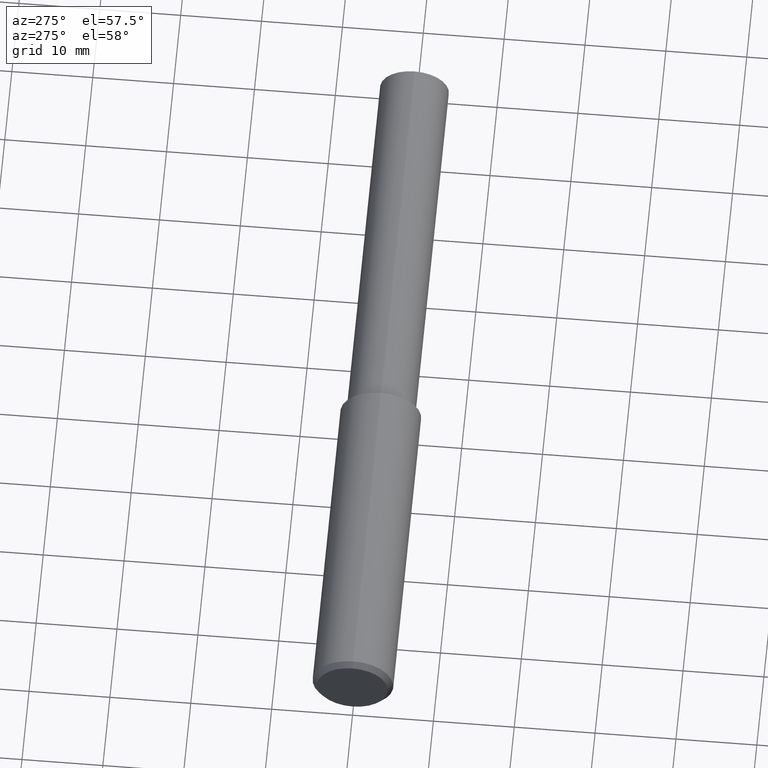
[diagram: clean part render]
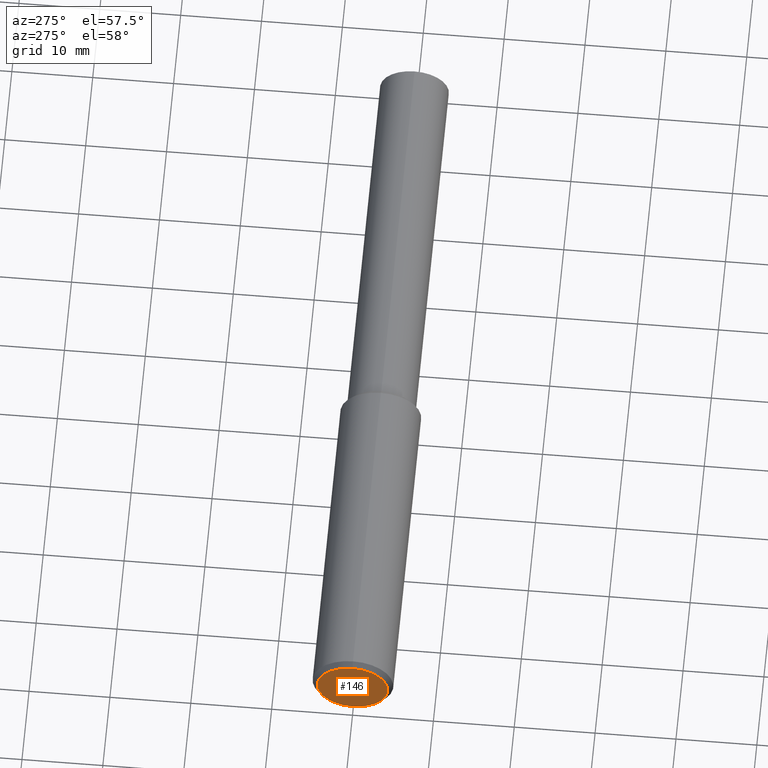
[diagram: same view with one face highlighted and labeled with its STEP entity id]
A machine part, auxiliary view. The second image highlights one B-rep face of the part: STEP entity #146.
In plain terms, the highlighted planar face has unit normal (-1, 0, 0).
Its self-contained STEP definition (entity closure, byte-faithful):
#4 = DIRECTION ( 'NONE',  ( 1.000000000000000000, -0.000000000000000000, -0.000000000000000000 ) ) ;
#36 = CARTESIAN_POINT ( 'NONE',  ( 3.061616997868404646E-19, 0.1718503937007873628, 0.000000000000000000 ) ) ;
#39 = CIRCLE ( 'NONE', #123, 0.1718503937007873628 ) ;
#78 = VERTEX_POINT ( 'NONE', #319 ) ;
#97 = DIRECTION ( 'NONE',  ( -1.000000000000000000, 0.000000000000000000, 0.000000000000000000 ) ) ;
#108 = ORIENTED_EDGE ( 'NONE', *, *, #153, .F. ) ;
#123 = AXIS2_PLACEMENT_3D ( 'NONE', #178, #4, #131 ) ;
#130 = FACE_OUTER_BOUND ( 'NONE', #306, .T. ) ;
#131 = DIRECTION ( 'NONE',  ( 0.000000000000000000, 0.000000000000000000, -1.000000000000000000 ) ) ;
#146 = ADVANCED_FACE ( 'NONE', ( #130 ), #294, .T. ) ;
#153 = EDGE_CURVE ( 'NONE', #341, #78, #307, .T. ) ;
#178 = CARTESIAN_POINT ( 'NONE',  ( 0.000000000000000000, 0.000000000000000000, 0.000000000000000000 ) ) ;
#206 = DIRECTION ( 'NONE',  ( 0.000000000000000000, 0.000000000000000000, -1.000000000000000000 ) ) ;
#210 = CARTESIAN_POINT ( 'NONE',  ( 0.000000000000000000, 0.000000000000000000, 0.000000000000000000 ) ) ;
#262 = CARTESIAN_POINT ( 'NONE',  ( 0.000000000000000000, 2.257641195672236334E-17, 0.1718503937007873628 ) ) ;
#263 = EDGE_CURVE ( 'NONE', #78, #341, #39, .T. ) ;
#266 = DIRECTION ( 'NONE',  ( 0.000000000000000000, 0.000000000000000000, 1.000000000000000000 ) ) ;
#278 = AXIS2_PLACEMENT_3D ( 'NONE', #210, #322, #206 ) ;
#286 = ORIENTED_EDGE ( 'NONE', *, *, #263, .F. ) ;
#294 = PLANE ( 'NONE',  #368 ) ;
#306 = EDGE_LOOP ( 'NONE', ( #286, #108 ) ) ;
#307 = CIRCLE ( 'NONE', #278, 0.1718503937007873628 ) ;
#319 = CARTESIAN_POINT ( 'NONE',  ( 0.000000000000000000, 0.000000000000000000, -0.1718503937007873628 ) ) ;
#322 = DIRECTION ( 'NONE',  ( 1.000000000000000000, -0.000000000000000000, -0.000000000000000000 ) ) ;
#341 = VERTEX_POINT ( 'NONE', #262 ) ;
#368 = AXIS2_PLACEMENT_3D ( 'NONE', #36, #97, #266 ) ;